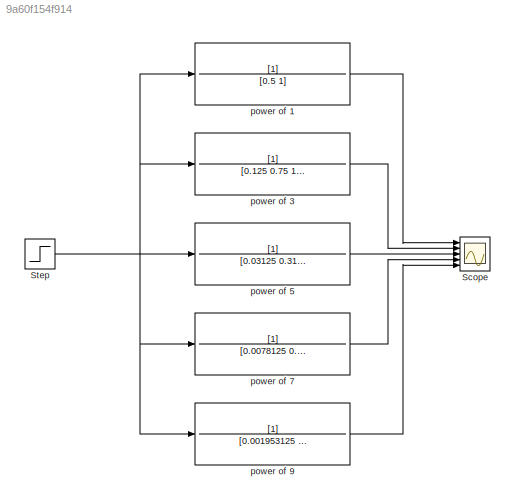
MODEL slx_9a60f154f914
KIND model
CONFIG AbsTol = auto
CONFIG EnableMultiTasking = off
CONFIG FixedStep = auto
CONFIG MaxStep = auto
CONFIG MinStep = auto
CONFIG RelTol = 1e-3
CONFIG SampleTimeConstraint = Unconstrained
CONFIG SolverName = VariableStepAuto
CONFIG StartTime = 0.0
CONFIG StopTime = 10.0
BLOCK [Scope] Scope
  Floating = off
  NumInputPorts = 5
  Ports = [5]
  ScopeSpecificationString = Simulink.scopes.TimeScopeBlockCfg('CurrentConfiguration', extmgr.ConfigurationSet(extmgr.Configuration('Core','General UI',true),extmgr.Configuration('Core','Source UI',true),extmgr.Configuration('Sources','WiredSimulink',true),extmgr.Configuration('Visuals','Time Domain',true),extmgr.Configuration('Tools','Plot Navigation',true),extmgr.Configuration('Tools','Measurements',true)),'Version','2021b'...<+1ch>
BLOCK [Step] Step
  SampleTime = 0
BLOCK [TransferFcn] power of 1
  Denominator = [0.5 1]
BLOCK [TransferFcn] power of 3
  Denominator = [0.125 0.75 1.5 1]
BLOCK [TransferFcn] power of 5
  Denominator = [0.03125 0.3125 2.5/2 5/2 2.5 1]
BLOCK [TransferFcn] power of 7
  Denominator = [0.0078125 0.109375 1.3125/2 13.125/6 26.25/6 10.5/2 3.5 1]
BLOCK [TransferFcn] power of 9
  Denominator = [0.001953125 0.03515625 0.5625/2 7.875/6 94.5/24 63/8 21/2 9 4.5 1]
NET Step:1 -> power of 1:1, power of 3:1, power of 5:1, power of 7:1, power of 9:1
LINE power of 1:1 -> Scope:1
LINE power of 3:1 -> Scope:2
LINE power of 5:1 -> Scope:3
LINE power of 7:1 -> Scope:4
LINE power of 9:1 -> Scope:5
note: NET lines group one-source signal fan-out (src -> all destinations, sorted); 1:1 wires keep LINE
